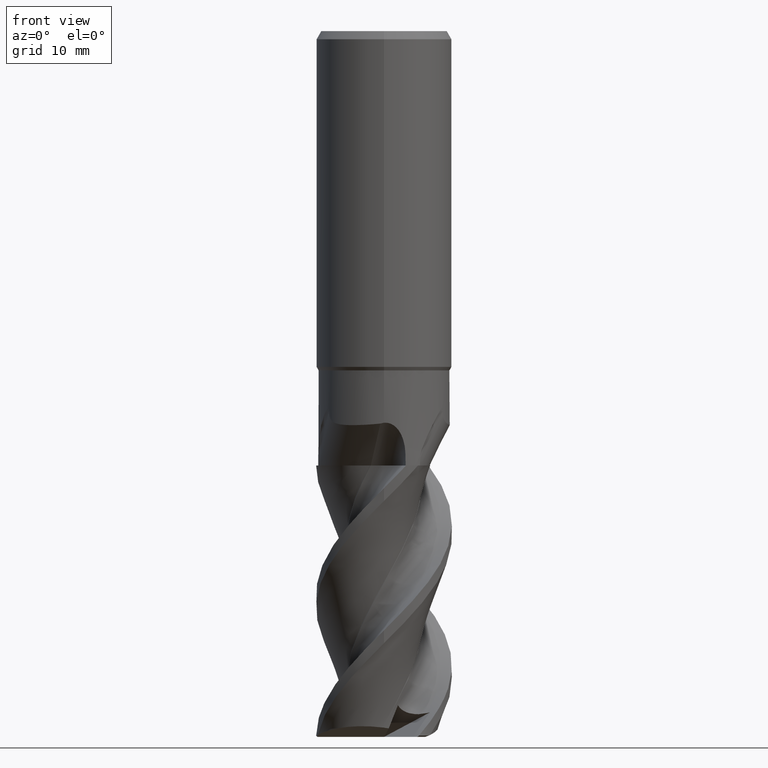
[diagram: clean part render]
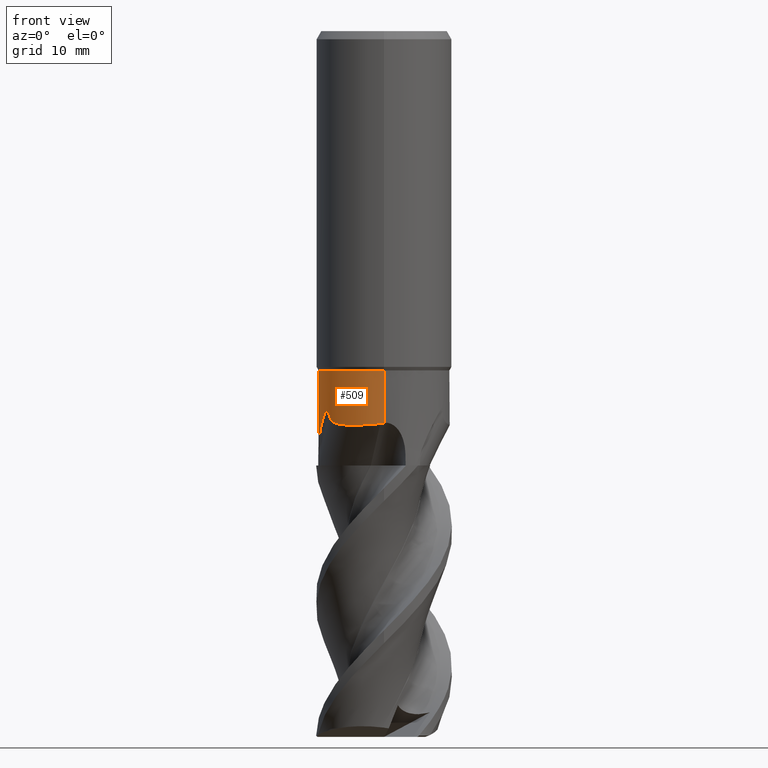
[diagram: same view with one face highlighted and labeled with its STEP entity id]
A machine part, front view. The second image highlights one B-rep face of the part: STEP entity #509.
In plain terms, the highlighted cylindrical surface (partial cylindrical patch) has radius 9.6999 mm, axis along (-0, -0, 1).
Its self-contained STEP definition (entity closure, byte-faithful):
#481=VERTEX_POINT('',#1339);
#503=VERTEX_POINT('',#1361);
#509=ADVANCED_FACE('',(#1368),#1369,.T.);
#551=EDGE_CURVE('',#695,#1039,#1414,.T.);
#651=EDGE_CURVE('',#667,#503,#1525,.T.);
#667=VERTEX_POINT('',#1541);
#695=VERTEX_POINT('',#1572);
#701=VERTEX_POINT('',#1578);
#807=VERTEX_POINT('',#1696);
#817=EDGE_CURVE('',#887,#481,#1706,.T.);
#869=EDGE_CURVE('',#695,#481,#1762,.T.);
#875=EDGE_CURVE('',#1175,#961,#1768,.T.);
#887=VERTEX_POINT('',#1780);
#893=EDGE_CURVE('',#1063,#991,#1786,.T.);
#935=EDGE_CURVE('',#503,#887,#1832,.T.);
#957=EDGE_CURVE('',#1039,#1063,#1856,.T.);
#961=VERTEX_POINT('',#1860);
#981=EDGE_CURVE('',#807,#667,#1884,.T.);
#991=VERTEX_POINT('',#1894);
#1017=EDGE_CURVE('',#961,#701,#1922,.T.);
#1039=VERTEX_POINT('',#1947);
#1063=VERTEX_POINT('',#1973);
#1093=EDGE_CURVE('',#991,#1175,#2003,.T.);
#1175=VERTEX_POINT('',#2092);
#1199=EDGE_CURVE('',#701,#807,#2123,.T.);
#1339=CARTESIAN_POINT('',(-9.52760125945458,1.82039672690858,-64.0000000000021));
#1361=CARTESIAN_POINT('',(-8.11259167557466,5.31741349792327,-57.8301332566647));
#1368=FACE_OUTER_BOUND('',#3005,.T.);
#1369=CYLINDRICAL_SURFACE('',#3006,9.69995);
#1414=B_SPLINE_CURVE_WITH_KNOTS('',3,(#3422,#3423,#3424,#3425),.UNSPECIFIED.,.F.,.F.,(4,4),(0.0,1.18782372876965),.UNSPECIFIED.);
#1525=B_SPLINE_CURVE_WITH_KNOTS('',3,(#4307,#4308,#4309,#4310,#4311,#4312,#4313,#4314,#4315,#4316,#4317,#4318,#4319,#4320,#4321,#4322),.UNSPECIFIED.,.F.,.F.,(4,2,2,2,2,2,2,4),(0.0,0.8907664714827,1.62147666940472,2.43527566518769,3.72297861572643,5.89792123494885,7.48554979893924,9.08605367663179),.UNSPECIFIED.);
#1541=CARTESIAN_POINT('',(-0.485253288520788,9.68780466609849,-56.0683003644612));
#1572=CARTESIAN_POINT('',(-9.68778539546549,-0.485637862924084,-64.0));
#1578=CARTESIAN_POINT('',(0.0,9.69995,-50.0));
#1696=CARTESIAN_POINT('',(-1.258446010048E-014,9.69994999999999,-55.7185931537012));
#1706=B_SPLINE_CURVE_WITH_KNOTS('',3,(#5492,#5493,#5494,#5495),.UNSPECIFIED.,.F.,.F.,(4,4),(0.0,1.78216712050875),.UNSPECIFIED.);
#1762=CIRCLE('',#6171,9.69995);
#1768=LINE('',#6188,#6189);
#1780=CARTESIAN_POINT('',(-9.52096267548325,1.85480450035976,-62.2181531834159));
#1786=B_SPLINE_CURVE_WITH_KNOTS('',3,(#6270,#6271,#6272,#6273,#6274,#6275,#6276,#6277,#6278,#6279,#6280,#6281,#6282,#6283,#6284,#6285),.UNSPECIFIED.,.F.,.F.,(4,2,2,2,2,2,2,4),(0.0,0.890766471387448,1.62147666915239,2.43527566475634,3.72297861501865,5.89792123378505,7.48554979744274,9.08605367480008),.UNSPECIFIED.);
#1832=B_SPLINE_CURVE_WITH_KNOTS('',3,(#6826,#6827,#6828,#6829,#6830,#6831,#6832,#6833,#6834,#6835,#6836,#6837,#6838,#6839),.UNSPECIFIED.,.F.,.F.,(4,2,2,2,2,2,4),(0.0,0.906610693326924,1.69787368500298,2.58240423177868,3.84677902672013,5.24305679338113,6.70900611858323),.UNSPECIFIED.);
#1856=B_SPLINE_CURVE_WITH_KNOTS('',3,(#6894,#6895,#6896,#6897,#6898,#6899,#6900,#6901,#6902,#6903,#6904,#6905,#6906,#6907,#6908,#6909,#6910,#6911,#6912,#6913,#6914,#6915,#6916,#6917,#6918,#6919,#6920,#6921,#6922,#6923,#6924,#6925,#6926,#6927,#6928,#6929,#6930,#6931,#6932,#6933,#6934,#6935,#6936,#6937),.UNSPECIFIED.,.F.,.F.,(4,2,2,2,2,2,2,2,2,2,2,2,2,2,2,2,2,2,2,2,2,4),(0.0,0.0791393492837508,0.237897357283279,0.721646402679188,2.80392620317859,4.09189676036164,4.21910707952704,4.27459705844343,4.31350486777257,4.35324135402391,4.41089289449216,4.56031215295868,4.76772794868352,5.29125113737695,6.63273970372576,6.97536061529357,7.12998536130719,7.22134082732796,7.29709428285845,7.3804006942702,7.51243220666406,7.86728895101445),.UNSPECIFIED.);
#1860=CARTESIAN_POINT('',(1.18786204017594E-015,-9.69995,-50.0));
#1884=B_SPLINE_CURVE_WITH_KNOTS('',3,(#7488,#7489,#7490,#7491,#7492,#7493,#7494,#7495,#7496,#7497,#7498,#7499,#7500,#7501,#7502,#7503,#7504,#7505,#7506,#7507,#7508,#7509,#7510,#7511,#7512,#7513,#7514,#7515,#7516,#7517,#7518,#7519,#7520,#7521,#7522,#7523,#7524,#7525,#7526,#7527,#7528,#7529,#7530,#7531),.UNSPECIFIED.,.F.,.F.,(4,2,2,2,2,2,2,2,2,2,2,2,2,2,2,2,2,2,2,2,2,4),(0.0,0.0791393492842758,0.237897357287869,0.721646402703942,2.80392620337909,4.09189676067276,4.21910707984049,4.27459705876011,4.31350486808074,4.35324135432173,4.41089289479059,4.56031215327712,4.7677279490213,5.29125113774839,6.6327397041917,6.97536061578139,7.12998536180526,7.22134082783454,7.29709428337175,7.38040069479053,7.51243220720285,7.8672889515893),.UNSPECIFIED.);
#1894=CARTESIAN_POINT('',(-0.548719333840834,-9.68441723053944,-57.8301332566487));
#1922=CIRCLE('',#7860,9.69995);
#1947=CARTESIAN_POINT('',(-9.68027753073838,-0.61746006379485,-62.7800802003513));
#1973=CARTESIAN_POINT('',(-8.147258303483,-5.26414400817715,-56.0683003644464));
#2003=B_SPLINE_CURVE_WITH_KNOTS('',3,(#8481,#8482,#8483,#8484,#8485,#8486,#8487,#8488,#8489,#8490,#8491,#8492,#8493,#8494),.UNSPECIFIED.,.F.,.F.,(4,2,2,2,2,2,4),(0.0,0.906610693327728,1.69787368500441,2.58240423178068,3.84677902672493,5.24305679338808,6.70900611859274),.UNSPECIFIED.);
#2092=CARTESIAN_POINT('',(2.64620070794137E-014,-9.69995000000002,-57.7100668631812));
#2123=LINE('',#9390,#9391);
#3005=EDGE_LOOP('',(#9857,#9858,#9859,#9860,#9861,#9862,#9863,#9864,#9865,#9866,#9867,#9868));
#3006=AXIS2_PLACEMENT_3D('',#9869,#9870,#9871);
#3422=CARTESIAN_POINT('',(-9.68778539546553,-0.485637862923312,-64.0000000000043));
#3423=CARTESIAN_POINT('',(-9.68444939051991,-0.552186421960253,-63.6097057158946));
#3424=CARTESIAN_POINT('',(-9.68087167673408,-0.608145294344617,-63.180204087811));
#3425=CARTESIAN_POINT('',(-9.6802775307853,-0.617460063059394,-62.7800802013667));
#4307=CARTESIAN_POINT('',(-0.485253289259271,9.68780466606151,-56.068300363515));
#4308=CARTESIAN_POINT('',(-0.515488033042768,9.6862902353544,-56.3636752679688));
#4309=CARTESIAN_POINT('',(-0.585728739382628,9.68289323479869,-56.6121474377986));
#4310=CARTESIAN_POINT('',(-0.788472636509077,9.66828484777748,-56.9963058153299));
#4311=CARTESIAN_POINT('',(-0.907719303808086,9.65852472935198,-57.1444759634003));
#4312=CARTESIAN_POINT('',(-1.21954423804422,9.62439918378187,-57.4142668331493));
#4313=CARTESIAN_POINT('',(-1.4093467274372,9.59910302513332,-57.5226242511434));
#4314=CARTESIAN_POINT('',(-1.91872544403998,9.51355305960584,-57.7436025495252));
#4315=CARTESIAN_POINT('',(-2.28615128842341,9.4358172117655,-57.8377034129903));
#4316=CARTESIAN_POINT('',(-3.35811645223221,9.12705070822437,-58.0193579704422));
#4317=CARTESIAN_POINT('',(-4.17057522828294,8.81308173487939,-58.0660697466384));
#4318=CARTESIAN_POINT('',(-5.63273378555756,7.92974821680184,-58.066174297567));
#4319=CARTESIAN_POINT('',(-6.20744876319712,7.48842463684601,-58.0417124522047));
#4320=CARTESIAN_POINT('',(-7.25061147429249,6.48429052205717,-57.9606326169034));
#4321=CARTESIAN_POINT('',(-7.7154550920769,5.92331088442678,-57.903434144262));
#4322=CARTESIAN_POINT('',(-8.11259167557464,5.31741349792333,-57.8301332566647));
#5492=CARTESIAN_POINT('',(-9.52096267548323,1.85480450035987,-62.2181531834159));
#5493=CARTESIAN_POINT('',(-9.52331710529902,1.84271889328171,-62.8120812746749));
#5494=CARTESIAN_POINT('',(-9.52552885149077,1.83124330580769,-63.4060465351274));
#5495=CARTESIAN_POINT('',(-9.52760125945457,1.82039672690862,-64.0));
#6171=AXIS2_PLACEMENT_3D('',#10341,#10342,#10343);
#6188=CARTESIAN_POINT('',(1.18762121129517E-015,-9.69995,-57.0));
#6189=VECTOR('',#10344,1.0);
#6270=CARTESIAN_POINT('',(-8.14725830308182,-5.26414400879807,-56.0683003635004));
#6271=CARTESIAN_POINT('',(-8.13082939572716,-5.28957084963527,-56.3636752679225));
#6272=CARTESIAN_POINT('',(-8.09276715378417,-5.34870258542055,-56.612147437761));
#6273=CARTESIAN_POINT('',(-7.97874397094582,-5.51697975729326,-56.9963058153138));
#6274=CARTESIAN_POINT('',(-7.91066812679632,-5.61537034127747,-57.144475963384));
#6275=CARTESIAN_POINT('',(-7.72520207029605,-5.86835588307506,-57.4142668331337));
#6276=CARTESIAN_POINT('',(-7.60839370959166,-6.02008158126679,-57.5226242511278));
#6277=CARTESIAN_POINT('',(-7.27961590784997,-6.41844150722903,-57.7436025495099));
#6278=CARTESIAN_POINT('',(-7.0285817666433,-6.69777369855229,-57.8377034129747));
#6279=CARTESIAN_POINT('',(-6.22519954883505,-7.4717395106118,-58.0193579704264));
#6280=CARTESIAN_POINT('',(-5.54706505389245,-8.01836496352701,-58.0660697466224));
#6281=CARTESIAN_POINT('',(-4.05099650858601,-8.84296465944867,-58.066174297551));
#6282=CARTESIAN_POINT('',(-3.38144158823549,-9.12002064004199,-58.0417124521888));
#6283=CARTESIAN_POINT('',(-1.99025458047394,-9.52135899073686,-57.9606326168875));
#6284=CARTESIAN_POINT('',(-1.27201015438791,-9.64343555370998,-57.9034341442459));
#6285=CARTESIAN_POINT('',(-0.548719333840866,-9.68441723053946,-57.8301332566486));
#6826=CARTESIAN_POINT('',(-8.11259167556424,5.31741349793918,-57.8301332569329));
#6827=CARTESIAN_POINT('',(-8.26961108452062,5.0778544810421,-57.7337829741314));
#6828=CARTESIAN_POINT('',(-8.42141192828458,4.82282636084108,-57.6855049839316));
#6829=CARTESIAN_POINT('',(-8.68652199781613,4.32464250113704,-57.7187268516952));
#6830=CARTESIAN_POINT('',(-8.79546820371495,4.09706442699914,-57.7837351966506));
#6831=CARTESIAN_POINT('',(-8.99791142513729,3.6329133005513,-58.0179354430635));
#6832=CARTESIAN_POINT('',(-9.08345661538931,3.40944421132955,-58.1929329987316));
#6833=CARTESIAN_POINT('',(-9.25301005812751,2.92603600308436,-58.6933987469864));
#6834=CARTESIAN_POINT('',(-9.32133843972775,2.69056135125303,-59.0519576343456));
#6835=CARTESIAN_POINT('',(-9.42643378738408,2.29718002069405,-59.8434898210478));
#6836=CARTESIAN_POINT('',(-9.46101686322519,2.14241620758499,-60.2946447372193));
#6837=CARTESIAN_POINT('',(-9.50768063608706,1.92509709382265,-61.2297170409272));
#6838=CARTESIAN_POINT('',(-9.51900721393416,1.86484214929667,-61.7248687689683));
#6839=CARTESIAN_POINT('',(-9.52096267546411,1.85480450045799,-62.2181531834164));
#6894=CARTESIAN_POINT('',(-9.68027753073836,-0.61746006379517,-62.7800802003506));
#6895=CARTESIAN_POINT('',(-9.6811509660521,-0.603766714641326,-62.7575497264138));
#6896=CARTESIAN_POINT('',(-9.68170293465477,-0.594722175180587,-62.7318235032434));
#6897=CARTESIAN_POINT('',(-9.68280031681001,-0.576674619939439,-62.6546345392438));
#6898=CARTESIAN_POINT('',(-9.68287702601521,-0.575265012192398,-62.5964154159952));
#6899=CARTESIAN_POINT('',(-9.68222403349374,-0.586204614197008,-62.3827603856581));
#6900=CARTESIAN_POINT('',(-9.67913302953512,-0.636422868812757,-62.1957473708543));
#6901=CARTESIAN_POINT('',(-9.66424000354851,-0.84942106586866,-61.5057934272086));
#6902=CARTESIAN_POINT('',(-9.63634531808242,-1.23276013968306,-60.724675119205));
#6903=CARTESIAN_POINT('',(-9.47805305596136,-2.08959852820901,-59.2852429090646));
#6904=CARTESIAN_POINT('',(-9.39394485761444,-2.44648922860231,-58.7350829664598));
#6905=CARTESIAN_POINT('',(-9.27389047722755,-2.84347943988303,-58.1576858314916));
#6906=CARTESIAN_POINT('',(-9.26283359984782,-2.87929902225691,-58.1059063233501));
#6907=CARTESIAN_POINT('',(-9.24657305447803,-2.93090204240988,-58.0317704058389));
#6908=CARTESIAN_POINT('',(-9.24158295633169,-2.94659922258917,-58.0092796397045));
#6909=CARTESIAN_POINT('',(-9.23300656494192,-2.97334050397395,-57.971068962571));
#6910=CARTESIAN_POINT('',(-9.22944610628552,-2.98437420905451,-57.9553328825755));
#6911=CARTESIAN_POINT('',(-9.2221977829103,-3.00669897172636,-57.9235546972337));
#6912=CARTESIAN_POINT('',(-9.21850855910288,-3.0179913079789,-57.9075120697267));
#6913=CARTESIAN_POINT('',(-9.20940105091863,-3.04569537539839,-57.8682314940613));
#6914=CARTESIAN_POINT('',(-9.20395238237974,-3.06212205557263,-57.8450073075461));
#6915=CARTESIAN_POINT('',(-9.18417693753319,-3.12120897352051,-57.7617118501961));
#6916=CARTESIAN_POINT('',(-9.1695120016364,-3.16404071949602,-57.7017833885732));
#6917=CARTESIAN_POINT('',(-9.13355365243257,-3.26668397836728,-57.5592955522691));
#6918=CARTESIAN_POINT('',(-9.11184905787562,-3.32676805037973,-57.4767927016744));
#6919=CARTESIAN_POINT('',(-9.03258647813164,-3.53946931822033,-57.1882092678079));
#6920=CARTESIAN_POINT('',(-8.96973398336872,-3.69626458679618,-56.9816509016177));
#6921=CARTESIAN_POINT('',(-8.72676389510726,-4.25747813020957,-56.2744137555993));
#6922=CARTESIAN_POINT('',(-8.54958732707041,-4.59060285001185,-55.9138011331782));
#6923=CARTESIAN_POINT('',(-8.37250998334905,-4.89850264758649,-55.6819242117855));
#6924=CARTESIAN_POINT('',(-8.32858843253011,-4.97296974514214,-55.6329400208122));
#6925=CARTESIAN_POINT('',(-8.26644046346791,-5.07507375749183,-55.5954321905116));
#6926=CARTESIAN_POINT('',(-8.24501853263908,-5.10981565508669,-55.5870758042469));
#6927=CARTESIAN_POINT('',(-8.21217165275213,-5.16234405638679,-55.5897907753279));
#6928=CARTESIAN_POINT('',(-8.20010576425373,-5.18147973500256,-55.5943209719959));
#6929=CARTESIAN_POINT('',(-8.17961489143784,-5.21375398007511,-55.6120072115632));
#6930=CARTESIAN_POINT('',(-8.17146339129759,-5.22650783799335,-55.6230916251468));
#6931=CARTESIAN_POINT('',(-8.15676285242527,-5.24942407354614,-55.6525246293825));
#6932=CARTESIAN_POINT('',(-8.1508858248441,-5.25853192835581,-55.6706258907261));
#6933=CARTESIAN_POINT('',(-8.13933475389797,-5.27640313026508,-55.7205663067853));
#6934=CARTESIAN_POINT('',(-8.13564997926399,-5.28206774748123,-55.754865831305));
#6935=CARTESIAN_POINT('',(-8.12921087143724,-5.29197834533705,-55.8769879940285));
#6936=CARTESIAN_POINT('',(-8.1372899092841,-5.27957198322556,-55.9808661597452));
#6937=CARTESIAN_POINT('',(-8.14725830348317,-5.2641440081769,-56.0683003644466));
#7488=CARTESIAN_POINT('',(4.30540266430053,8.69209628920055,-62.7800802003694));
#7489=CARTESIAN_POINT('',(4.3176981701876,8.68600603179384,-62.7575497264324));
#7490=CARTESIAN_POINT('',(4.32580695542746,8.68196178089548,-62.7318235032616));
#7491=CARTESIAN_POINT('',(4.34198528782001,8.67388836409905,-62.6546345392624));
#7492=CARTESIAN_POINT('',(4.34324439854096,8.67324999234595,-62.5964154160141));
#7493=CARTESIAN_POINT('',(4.33344392903682,8.67815428523624,-62.3827603856737));
#7494=CARTESIAN_POINT('',(4.28840814282513,8.70058652459342,-62.1957473708672));
#7495=CARTESIAN_POINT('',(4.09649978022277,8.79418788427695,-61.5057934272271));
#7496=CARTESIAN_POINT('',(3.75057106130347,8.96169991493984,-60.7246751192236));
#7497=CARTESIAN_POINT('',(2.92938111884183,9.25303398898354,-59.2852429090827));
#7498=CARTESIAN_POINT('',(2.57825060675301,9.35863950274533,-58.7350829664773));
#7499=CARTESIAN_POINT('',(2.17441980853911,9.45316446513449,-58.1576858315122));
#7500=CARTESIAN_POINT('',(2.13787070155894,9.46149871962447,-58.1059063233685));
#7501=CARTESIAN_POINT('',(2.08505090250667,9.47321818433197,-58.0317704058532));
#7502=CARTESIAN_POINT('',(2.06896169663108,9.47674522265936,-58.0092796397196));
#7503=CARTESIAN_POINT('',(2.04151487193143,9.4826884905345,-57.971068962592));
#7504=CARTESIAN_POINT('',(2.03017917370381,9.48512189542961,-57.955332882594));
#7505=CARTESIAN_POINT('',(2.00722120040578,9.49000704458841,-57.9235546972478));
#7506=CARTESIAN_POINT('',(1.99559713843997,9.49245825117704,-57.9075120697418));
#7507=CARTESIAN_POINT('',(1.96705095817146,9.49842295143466,-57.8682314940723));
#7508=CARTESIAN_POINT('',(1.95010070157309,9.50191760614993,-57.8450073075596));
#7509=CARTESIAN_POINT('',(1.88904220717667,9.51433502751541,-57.761711850211));
#7510=CARTESIAN_POINT('',(1.8446163591255,9.52305069347155,-57.7017833885888));
#7511=CARTESIAN_POINT('',(1.73774551481745,9.54323147901782,-57.5592955522894));
#7512=CARTESIAN_POINT('',(1.67485888481165,9.55447678475929,-57.4767927016923));
#7513=CARTESIAN_POINT('',(1.45102289357145,9.59218401105199,-57.1882092678243));
#7514=CARTESIAN_POINT('',(1.28380796040969,9.61614978818408,-56.9816509016334));
#7515=CARTESIAN_POINT('',(0.676297730731295,9.68633829109699,-56.2744137556103));
#7516=CARTESIAN_POINT('',(0.299214976736503,9.69946124212239,-55.9138011331916));
#7517=CARTESIAN_POINT('',(-0.0559727416407469,9.7000576628123,-55.6819242118009));
#7518=CARTESIAN_POINT('',(-0.142423915280496,9.69925403280735,-55.6329400208267));
#7519=CARTESIAN_POINT('',(-0.26192256833528,9.69648431898069,-55.5954321905259));
#7520=CARTESIAN_POINT('',(-0.302720899642359,9.69530333148224,-55.5870758042613));
#7521=CARTESIAN_POINT('',(-0.364635269532459,9.6931212997151,-55.5897907753423));
#7522=CARTESIAN_POINT('',(-0.387240197581127,9.69223977306414,-55.5943209720105));
#7523=CARTESIAN_POINT('',(-0.425435950109444,9.69063127919615,-55.6120072115775));
#7524=CARTESIAN_POINT('',(-0.440556865132962,9.68994880195488,-55.6230916251608));
#7525=CARTESIAN_POINT('',(-0.467753176717645,9.68867587961848,-55.6525246293972));
#7526=CARTESIAN_POINT('',(-0.47857932414743,9.68814015183925,-55.6706258907419));
#7527=CARTESIAN_POINT('',(-0.499831774469412,9.68707223191364,-55.7205663067995));
#7528=CARTESIAN_POINT('',(-0.50657986419847,9.68671343208151,-55.7548658313181));
#7529=CARTESIAN_POINT('',(-0.518382247621824,9.68609230005374,-55.876987994043));
#7530=CARTESIAN_POINT('',(-0.503598503941277,9.68688577101151,-55.9808661597598));
#7531=CARTESIAN_POINT('',(-0.485253288520637,9.6878046660985,-56.0683003644613));
#7860=AXIS2_PLACEMENT_3D('',#10495,#10496,#10497);
#8481=CARTESIAN_POINT('',(-0.548719333859738,-9.68441723053837,-57.8301332569168));
#8482=CARTESIAN_POINT('',(-0.26274543504279,-9.7006205191333,-57.7337829741153));
#8483=CARTESIAN_POINT('',(0.0340158176125914,-9.70456984604825,-57.6855049839155));
#8484=CARTESIAN_POINT('',(0.598010730637359,-9.68506997120962,-57.7187268516791));
#8485=CARTESIAN_POINT('',(0.849572227134489,-9.66563111609506,-57.7837351966345));
#8486=CARTESIAN_POINT('',(1.35276050454511,-9.60887652544679,-58.0179354430476));
#8487=CARTESIAN_POINT('',(1.58906300789792,-9.57122628876562,-58.1929329987161));
#8488=CARTESIAN_POINT('',(2.09248351800494,-9.47635977335347,-58.6933987469706));
#8489=CARTESIAN_POINT('',(2.33057473923829,-9.41779656170307,-59.0519576343297));
#8490=CARTESIAN_POINT('',(2.72380063870499,-9.31212113731353,-59.8434898210319));
#8491=CARTESIAN_POINT('',(2.87512157036449,-9.26468905297848,-60.2946447372032));
#8492=CARTESIAN_POINT('',(3.08665733004145,-9.19644150883215,-61.2297170409107));
#8493=CARTESIAN_POINT('',(3.14450293162811,-9.1761231407227,-61.7248687689517));
#8494=CARTESIAN_POINT('',(3.15417352128167,-9.17279779566442,-62.2181531833995));
#9390=CARTESIAN_POINT('',(-1.1881028690567E-015,9.69995,-57.0));
#9391=VECTOR('',#10740,1.0);
#9857=ORIENTED_EDGE('',*,*,#1199,.T.);
#9858=ORIENTED_EDGE('',*,*,#981,.T.);
#9859=ORIENTED_EDGE('',*,*,#651,.T.);
#9860=ORIENTED_EDGE('',*,*,#935,.T.);
#9861=ORIENTED_EDGE('',*,*,#817,.T.);
#9862=ORIENTED_EDGE('',*,*,#869,.F.);
#9863=ORIENTED_EDGE('',*,*,#551,.T.);
#9864=ORIENTED_EDGE('',*,*,#957,.T.);
#9865=ORIENTED_EDGE('',*,*,#893,.T.);
#9866=ORIENTED_EDGE('',*,*,#1093,.T.);
#9867=ORIENTED_EDGE('',*,*,#875,.T.);
#9868=ORIENTED_EDGE('',*,*,#1017,.T.);
#9869=CARTESIAN_POINT('',(0.0,0.0,-57.0));
#9870=DIRECTION('',(-0.0,-0.0,1.0));
#9871=DIRECTION('',(0.0,1.0,0.0));
#10341=CARTESIAN_POINT('',(0.0,0.0,-64.0));
#10342=DIRECTION('',(0.0,0.0,-1.0));
#10343=DIRECTION('',(0.0,1.0,0.0));
#10344=DIRECTION('',(-0.0,-0.0,1.0));
#10495=CARTESIAN_POINT('',(0.0,0.0,-50.0));
#10496=DIRECTION('',(0.0,0.0,-1.0));
#10497=DIRECTION('',(0.0,1.0,0.0));
#10740=DIRECTION('',(0.0,0.0,-1.0));